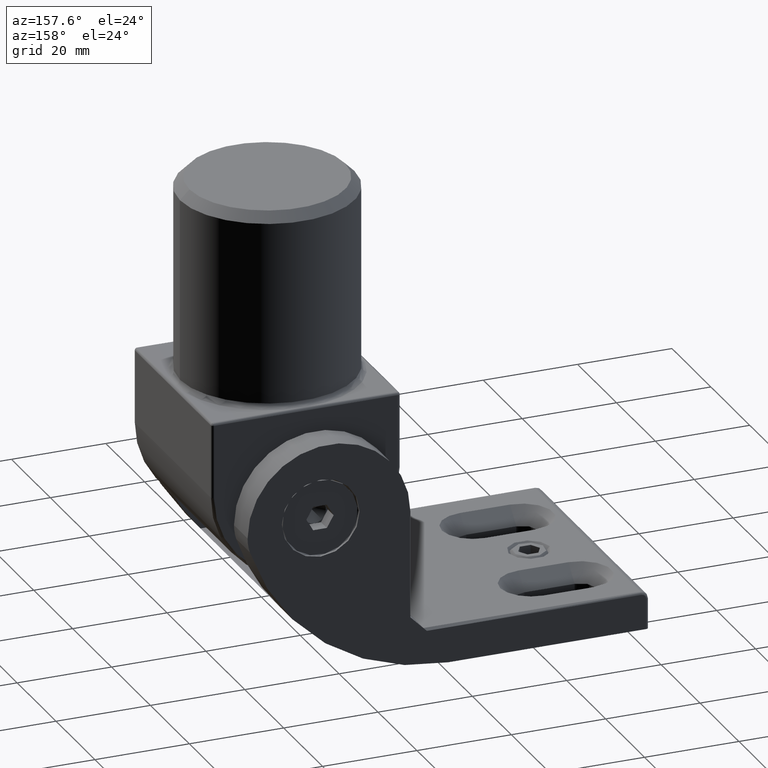
[diagram: clean part render]
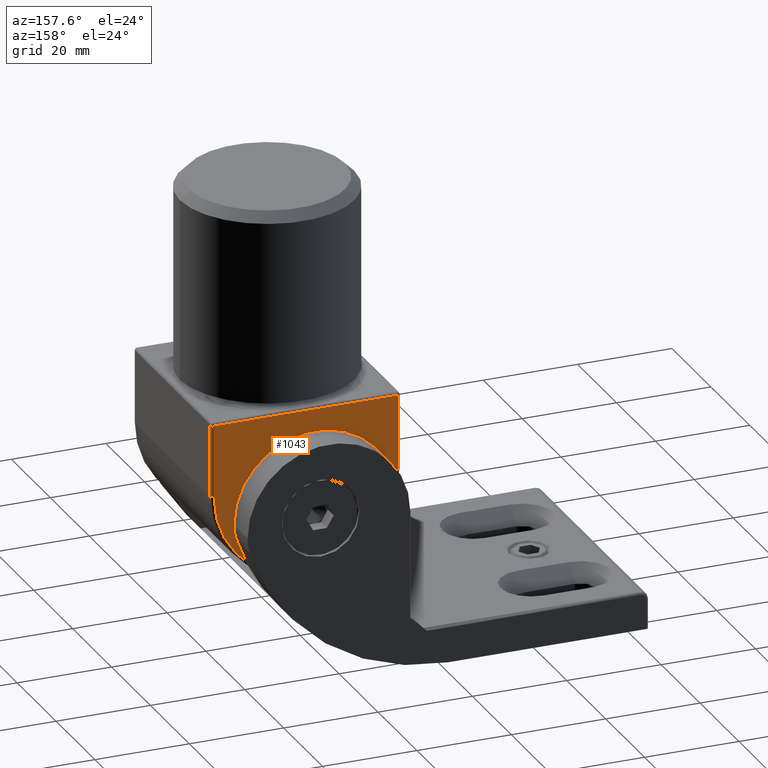
[diagram: same view with one face highlighted and labeled with its STEP entity id]
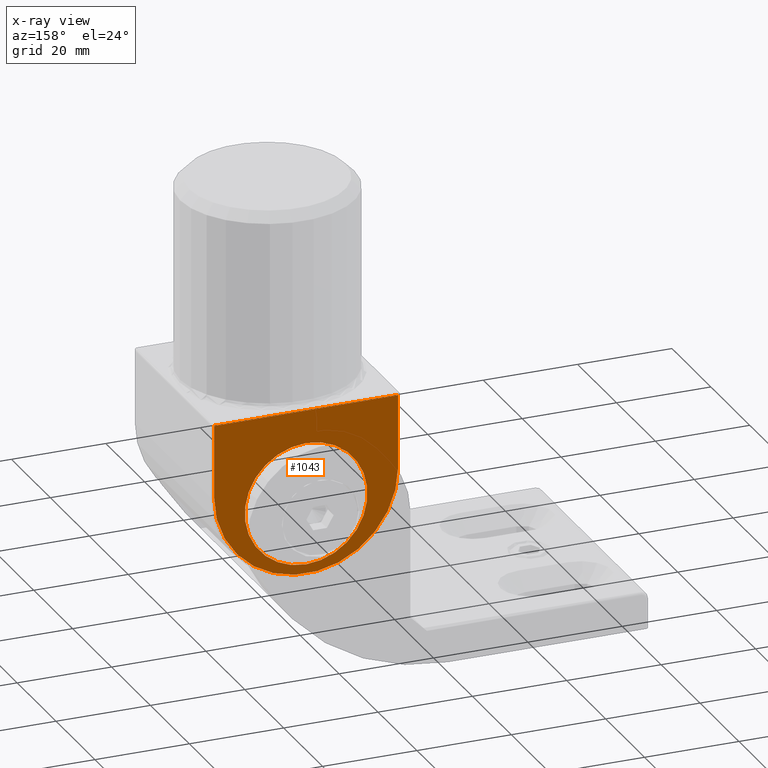
[diagram: x-ray of the same camera — body ghosted, the highlighted face saturated]
A machine part, auxiliary view. The second image highlights one B-rep face of the part: STEP entity #1043.
The next image is the same camera in x-ray: the body ghosted, the highlighted face saturated — about 0% of this face is hidden behind the body in this view.
In plain terms, the highlighted planar face has unit normal (0, 1, 0).
Its self-contained STEP definition (entity closure, byte-faithful):
#220 = VECTOR ( 'NONE', #16274, 1000.000000000000000 ) ;
#495 = VERTEX_POINT ( 'NONE', #24059 ) ;
#500 = CIRCLE ( 'NONE', #7478, 19.50000000000000355 ) ;
#501 = VECTOR ( 'NONE', #1681, 1000.000000000000000 ) ;
#809 = AXIS2_PLACEMENT_3D ( 'NONE', #12570, #2795, #20009 ) ;
#831 = FACE_OUTER_BOUND ( 'NONE', #13439, .T. ) ;
#844 = DIRECTION ( 'NONE',  ( 0.000000000000000000, 1.000000000000000000, 0.000000000000000000 ) ) ;
#1043 = ADVANCED_FACE ( 'NONE', ( #14424, #831 ), #21963, .T. ) ;
#1601 = VERTEX_POINT ( 'NONE', #16863 ) ;
#1681 = DIRECTION ( 'NONE',  ( 2.168404344971010347E-16, 0.000000000000000000, -1.000000000000000000 ) ) ;
#2454 = CARTESIAN_POINT ( 'NONE',  ( 0.000000000000000000, 20.00000000000000000, -15.99999999999999289 ) ) ;
#2795 = DIRECTION ( 'NONE',  ( 0.000000000000000000, 1.000000000000000000, 0.000000000000000000 ) ) ;
#3996 = ORIENTED_EDGE ( 'NONE', *, *, #19027, .T. ) ;
#5416 = AXIS2_PLACEMENT_3D ( 'NONE', #16206, #844, #7114 ) ;
#6079 = EDGE_CURVE ( 'NONE', #1601, #495, #11686, .T. ) ;
#6264 = DIRECTION ( 'NONE',  ( 0.000000000000000000, 0.000000000000000000, 1.000000000000000000 ) ) ;
#7114 = DIRECTION ( 'NONE',  ( 0.000000000000000000, -0.000000000000000000, 1.000000000000000000 ) ) ;
#7370 = CARTESIAN_POINT ( 'NONE',  ( 1.592040838891559293E-15, 20.00000000000000000, -33.50000000000000000 ) ) ;
#7478 = AXIS2_PLACEMENT_3D ( 'NONE', #2454, #15853, #6264 ) ;
#7521 = EDGE_LOOP ( 'NONE', ( #9248, #8642 ) ) ;
#7570 = CIRCLE ( 'NONE', #809, 13.00000000000000178 ) ;
#8014 = DIRECTION ( 'NONE',  ( 0.000000000000000000, 0.000000000000000000, 1.000000000000000000 ) ) ;
#8642 = ORIENTED_EDGE ( 'NONE', *, *, #11194, .F. ) ;
#9248 = ORIENTED_EDGE ( 'NONE', *, *, #16083, .F. ) ;
#9272 = EDGE_CURVE ( 'NONE', #21579, #1601, #21567, .T. ) ;
#9584 = CARTESIAN_POINT ( 'NONE',  ( 0.000000000000000000, 20.00000000000000000, -7.500000000000000000 ) ) ;
#10826 = VERTEX_POINT ( 'NONE', #9584 ) ;
#11194 = EDGE_CURVE ( 'NONE', #20373, #10826, #12745, .T. ) ;
#11291 = AXIS2_PLACEMENT_3D ( 'NONE', #15999, #21674, #8014 ) ;
#11509 = DIRECTION ( 'NONE',  ( 1.000000000000000000, -0.000000000000000000, 0.000000000000000000 ) ) ;
#11686 = LINE ( 'NONE', #13084, #501 ) ;
#12570 = CARTESIAN_POINT ( 'NONE',  ( 0.000000000000000000, 20.00000000000000000, -20.50000000000000000 ) ) ;
#12745 = CIRCLE ( 'NONE', #11291, 13.00000000000000178 ) ;
#13084 = CARTESIAN_POINT ( 'NONE',  ( 19.50000000000000355, 20.00000000000000000, -15.99999999999998934 ) ) ;
#13162 = VERTEX_POINT ( 'NONE', #22856 ) ;
#13439 = EDGE_LOOP ( 'NONE', ( #3996, #14568, #16658, #16787 ) ) ;
#14423 = CARTESIAN_POINT ( 'NONE',  ( -19.50000000000000000, 20.00000000000000000, 0.000000000000000000 ) ) ;
#14424 = FACE_BOUND ( 'NONE', #7521, .T. ) ;
#14568 = ORIENTED_EDGE ( 'NONE', *, *, #19175, .T. ) ;
#14613 = VECTOR ( 'NONE', #11509, 1000.000000000000000 ) ;
#15853 = DIRECTION ( 'NONE',  ( 0.000000000000000000, 1.000000000000000000, 0.000000000000000000 ) ) ;
#15999 = CARTESIAN_POINT ( 'NONE',  ( 0.000000000000000000, 20.00000000000000000, -20.50000000000000000 ) ) ;
#16083 = EDGE_CURVE ( 'NONE', #10826, #20373, #7570, .T. ) ;
#16206 = CARTESIAN_POINT ( 'NONE',  ( 0.000000000000000000, 20.00000000000000000, -15.99999999999999289 ) ) ;
#16274 = DIRECTION ( 'NONE',  ( 2.168404344971010347E-16, -0.000000000000000000, 1.000000000000000000 ) ) ;
#16658 = ORIENTED_EDGE ( 'NONE', *, *, #9272, .T. ) ;
#16787 = ORIENTED_EDGE ( 'NONE', *, *, #6079, .T. ) ;
#16863 = CARTESIAN_POINT ( 'NONE',  ( 19.50000000000000000, 20.00000000000000000, -0.5000000000000004441 ) ) ;
#17136 = LINE ( 'NONE', #14423, #220 ) ;
#17157 = CARTESIAN_POINT ( 'NONE',  ( 20.00000000000000000, 20.00000000000000000, -0.5000000000000004441 ) ) ;
#17438 = CARTESIAN_POINT ( 'NONE',  ( -19.50000000000000000, 20.00000000000000000, -0.5000000000000004441 ) ) ;
#19027 = EDGE_CURVE ( 'NONE', #495, #13162, #500, .T. ) ;
#19175 = EDGE_CURVE ( 'NONE', #13162, #21579, #17136, .T. ) ;
#20009 = DIRECTION ( 'NONE',  ( 0.000000000000000000, 0.000000000000000000, 1.000000000000000000 ) ) ;
#20373 = VERTEX_POINT ( 'NONE', #7370 ) ;
#21567 = LINE ( 'NONE', #17157, #14613 ) ;
#21579 = VERTEX_POINT ( 'NONE', #17438 ) ;
#21674 = DIRECTION ( 'NONE',  ( 0.000000000000000000, 1.000000000000000000, 0.000000000000000000 ) ) ;
#21963 = PLANE ( 'NONE',  #5416 ) ;
#22856 = CARTESIAN_POINT ( 'NONE',  ( -19.50000000000000355, 20.00000000000000000, -15.99999999999999645 ) ) ;
#24059 = CARTESIAN_POINT ( 'NONE',  ( 19.50000000000000355, 20.00000000000000000, -15.99999999999998934 ) ) ;